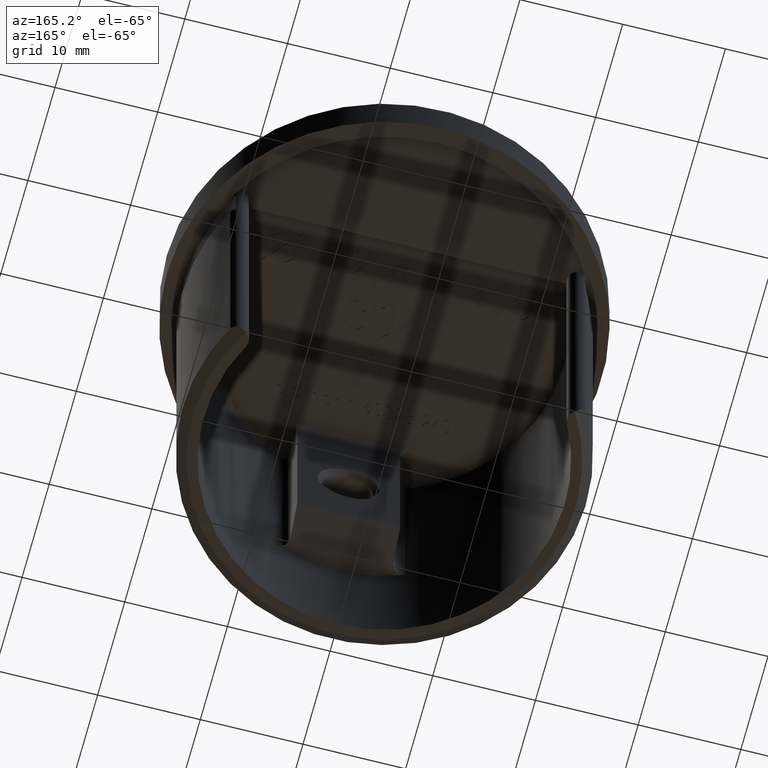
[diagram: clean part render]
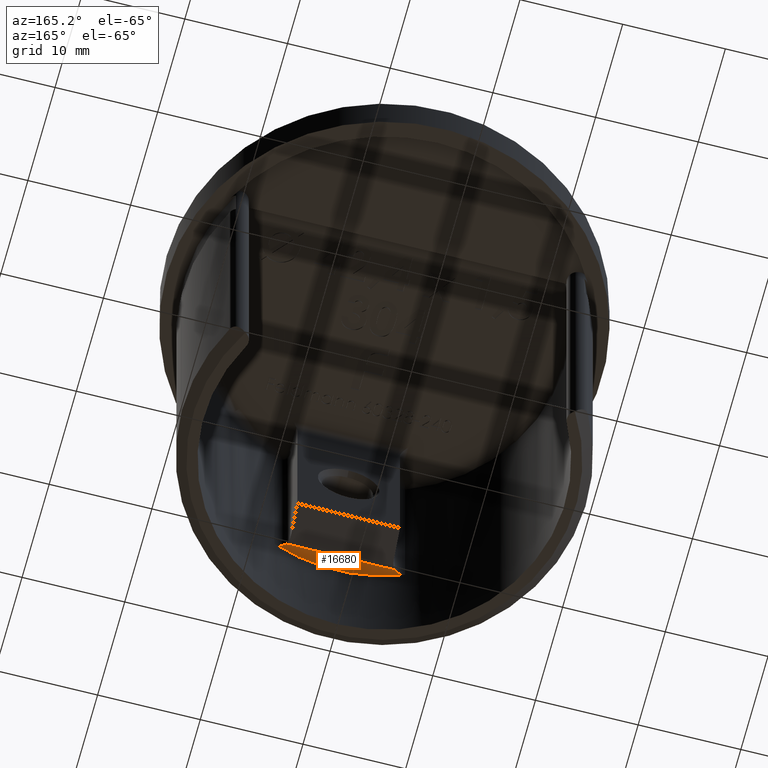
[diagram: same view with one face highlighted and labeled with its STEP entity id]
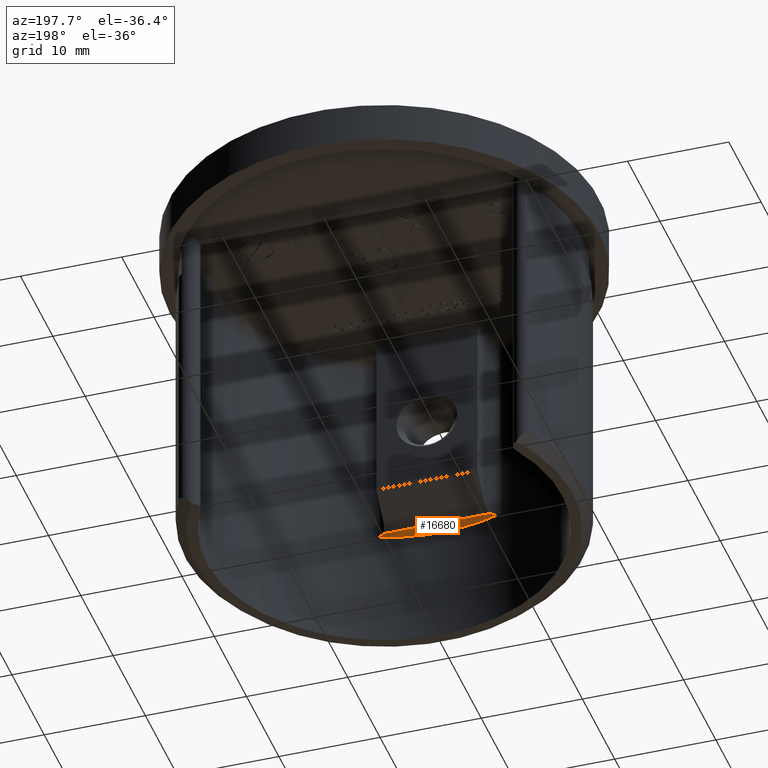
[diagram: same view with one face highlighted and labeled with its STEP entity id]
A machine part, auxiliary view. The second image highlights one B-rep face of the part: STEP entity #16680.
A second angle (auxiliary view) of the same face is appended — the face is thin or edge-on in the first view.
In plain terms, the highlighted planar face has unit normal (0, 0, 1).
Its self-contained STEP definition (entity closure, byte-faithful):
#454 = DIRECTION ( 'NONE',  ( 0.0000000000000000000, 0.0000000000000000000, 1.000000000000000000 ) ) ;
#602 = CARTESIAN_POINT ( 'NONE',  ( -6.361445783132528400, -16.41011905953961800, -18.00000000000000000 ) ) ;
#756 = DIRECTION ( 'NONE',  ( 1.000000000000000000, 0.0000000000000000000, 0.0000000000000000000 ) ) ;
#2287 = DIRECTION ( 'NONE',  ( 1.000000000000000000, 0.0000000000000000000, 0.0000000000000000000 ) ) ;
#2720 = CARTESIAN_POINT ( 'NONE',  ( 5.259697645309129800, -16.15000000000000600, -18.00000000000000000 ) ) ;
#3287 = PLANE ( 'NONE',  #23390 ) ;
#4091 = ORIENTED_EDGE ( 'NONE', *, *, #12447, .T. ) ;
#4559 = ORIENTED_EDGE ( 'NONE', *, *, #19816, .F. ) ;
#4746 = VERTEX_POINT ( 'NONE', #16909 ) ;
#6768 = CARTESIAN_POINT ( 'NONE',  ( 5.999999999999998200, -15.47772593115668200, -18.00000000000000000 ) ) ;
#6854 = DIRECTION ( 'NONE',  ( 0.0000000000000000000, 0.0000000000000000000, 1.000000000000000000 ) ) ;
#8778 = DIRECTION ( 'NONE',  ( 0.0000000000000000000, 0.0000000000000000000, 1.000000000000000000 ) ) ;
#9125 = EDGE_CURVE ( 'NONE', #21283, #16945, #10662, .T. ) ;
#9490 = AXIS2_PLACEMENT_3D ( 'NONE', #6768, #6854, #23101 ) ;
#10662 = CIRCLE ( 'NONE', #9490, 1.000000000000000000 ) ;
#10918 = LINE ( 'NONE', #18573, #21545 ) ;
#11313 = CARTESIAN_POINT ( 'NONE',  ( 0.0000000000000000000, 0.0000000000000000000, -18.00000000000000000 ) ) ;
#11871 = CARTESIAN_POINT ( 'NONE',  ( -5.999999999999998200, -15.47772593115668200, -18.00000000000000000 ) ) ;
#12146 = CARTESIAN_POINT ( 'NONE',  ( 0.0000000000000000000, 0.0000000000000000000, -18.00000000000000000 ) ) ;
#12447 = EDGE_CURVE ( 'NONE', #20336, #4746, #12635, .T. ) ;
#12635 = CIRCLE ( 'NONE', #14901, 1.000000000000000000 ) ;
#13309 = DIRECTION ( 'NONE',  ( 0.0000000000000000000, 0.0000000000000000000, 1.000000000000000000 ) ) ;
#13471 = EDGE_CURVE ( 'NONE', #4746, #21283, #10918, .T. ) ;
#13622 = ORIENTED_EDGE ( 'NONE', *, *, #9125, .T. ) ;
#13648 = CARTESIAN_POINT ( 'NONE',  ( 6.361445783132528400, -16.41011905953961800, -18.00000000000000000 ) ) ;
#14901 = AXIS2_PLACEMENT_3D ( 'NONE', #11871, #13309, #756 ) ;
#15220 = ORIENTED_EDGE ( 'NONE', *, *, #13471, .T. ) ;
#16501 = AXIS2_PLACEMENT_3D ( 'NONE', #11313, #454, #2287 ) ;
#16571 = EDGE_LOOP ( 'NONE', ( #4559, #4091, #15220, #13622 ) ) ;
#16680 = ADVANCED_FACE ( 'NONE', ( #19481 ), #3287, .F. ) ;
#16909 = CARTESIAN_POINT ( 'NONE',  ( -5.259697645309128900, -16.15000000000000600, -18.00000000000000000 ) ) ;
#16945 = VERTEX_POINT ( 'NONE', #13648 ) ;
#18573 = CARTESIAN_POINT ( 'NONE',  ( 4.999999999999998200, -16.15000000000000600, -18.00000000000000000 ) ) ;
#19481 = FACE_OUTER_BOUND ( 'NONE', #16571, .T. ) ;
#19816 = EDGE_CURVE ( 'NONE', #20336, #16945, #23155, .T. ) ;
#20336 = VERTEX_POINT ( 'NONE', #602 ) ;
#21283 = VERTEX_POINT ( 'NONE', #2720 ) ;
#21545 = VECTOR ( 'NONE', #23801, 1000.000000000000000 ) ;
#21616 = DIRECTION ( 'NONE',  ( 1.000000000000000000, 0.0000000000000000000, -0.0000000000000000000 ) ) ;
#23101 = DIRECTION ( 'NONE',  ( 1.000000000000000000, 0.0000000000000000000, 0.0000000000000000000 ) ) ;
#23155 = CIRCLE ( 'NONE', #16501, 17.60000000000000100 ) ;
#23390 = AXIS2_PLACEMENT_3D ( 'NONE', #12146, #8778, #21616 ) ;
#23801 = DIRECTION ( 'NONE',  ( 1.000000000000000000, 0.0000000000000000000, 0.0000000000000000000 ) ) ;